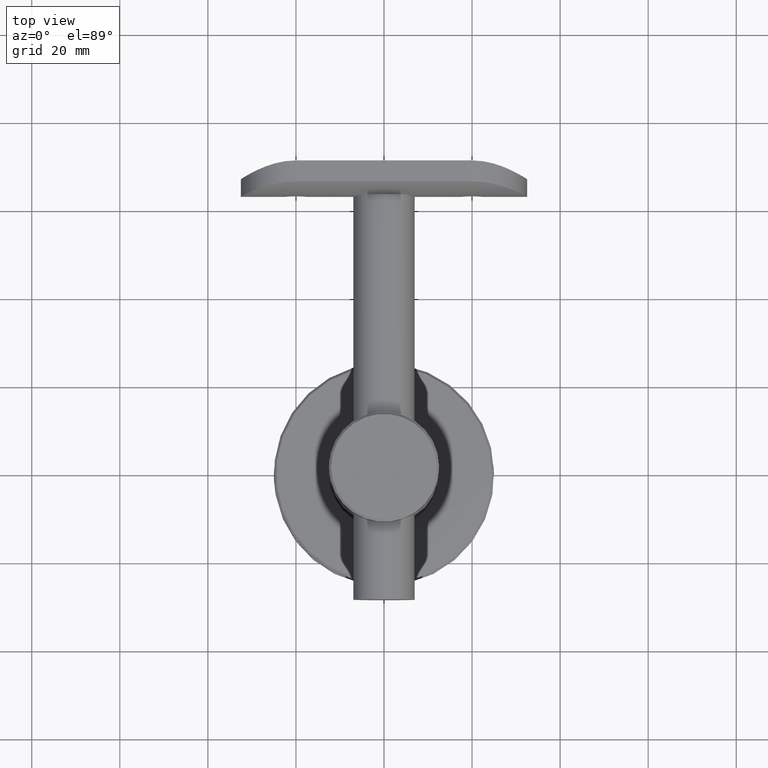
[diagram: clean part render]
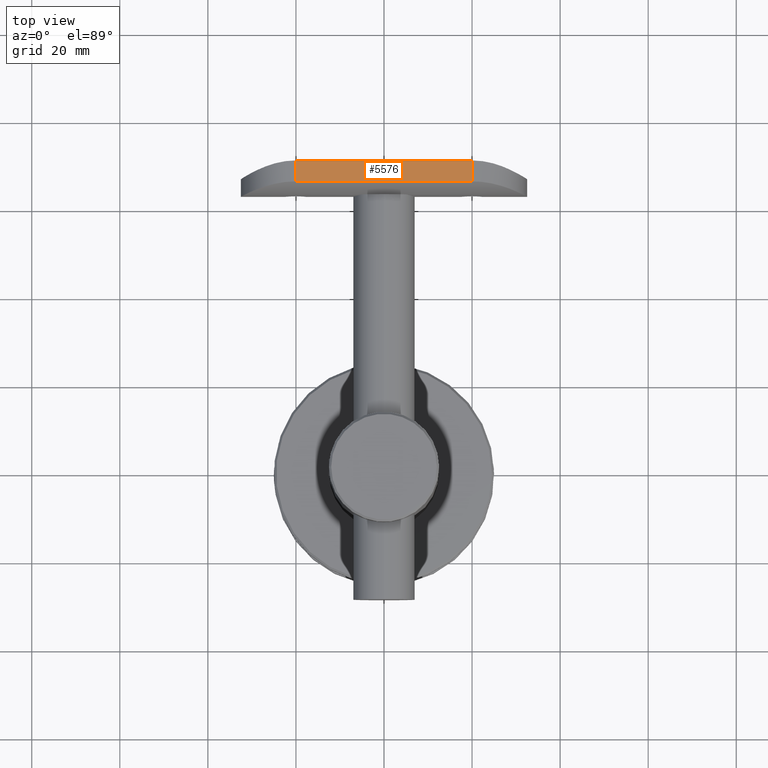
[diagram: same view with one face highlighted and labeled with its STEP entity id]
A machine part, top view. The second image highlights one B-rep face of the part: STEP entity #5576.
In plain terms, the highlighted planar face has unit normal (0, 0, -1).
Its self-contained STEP definition (entity closure, byte-faithful):
#350 = CARTESIAN_POINT ( 'NONE',  ( 12.50000000000000000, 3.318729470161015300, -20.00000000000000400 ) ) ;
#554 = VECTOR ( 'NONE', #9028, 1000.000000000000000 ) ;
#1882 = VERTEX_POINT ( 'NONE', #9082 ) ;
#2134 = LINE ( 'NONE', #8981, #16533 ) ;
#2364 = FACE_OUTER_BOUND ( 'NONE', #5280, .T. ) ;
#2464 = EDGE_CURVE ( 'NONE', #1882, #19660, #2134, .T. ) ;
#2811 = LINE ( 'NONE', #10774, #554 ) ;
#2952 = ORIENTED_EDGE ( 'NONE', *, *, #2464, .T. ) ;
#2998 = CARTESIAN_POINT ( 'NONE',  ( 12.50000000000000000, 3.318729470161015300, 32.50000000000000000 ) ) ;
#3102 = EDGE_CURVE ( 'NONE', #19660, #18827, #10599, .T. ) ;
#3876 = VERTEX_POINT ( 'NONE', #6267 ) ;
#4272 = AXIS2_PLACEMENT_3D ( 'NONE', #18971, #20403, #15920 ) ;
#4550 = CARTESIAN_POINT ( 'NONE',  ( 12.50000000000000000, 3.318729470161015300, -20.00000000000000400 ) ) ;
#5280 = EDGE_LOOP ( 'NONE', ( #17787, #14044, #7608, #2952 ) ) ;
#5576 = ADVANCED_FACE ( 'NONE', ( #2364 ), #9594, .F. ) ;
#6267 = CARTESIAN_POINT ( 'NONE',  ( 12.50000000000000200, 8.077208171562679300, -20.00000000000000400 ) ) ;
#7608 = ORIENTED_EDGE ( 'NONE', *, *, #12721, .F. ) ;
#7736 = LINE ( 'NONE', #350, #20354 ) ;
#7850 = DIRECTION ( 'NONE',  ( -0.0000000000000000000, -0.0000000000000000000, -1.000000000000000000 ) ) ;
#8981 = CARTESIAN_POINT ( 'NONE',  ( 12.50000000000000000, 3.318729470161012600, 20.00000000000000000 ) ) ;
#9028 = DIRECTION ( 'NONE',  ( -0.0000000000000000000, -0.0000000000000000000, -1.000000000000000000 ) ) ;
#9082 = CARTESIAN_POINT ( 'NONE',  ( 12.50000000000000200, 8.077208171562679300, 20.00000000000000000 ) ) ;
#9594 = PLANE ( 'NONE',  #4272 ) ;
#9920 = DIRECTION ( 'NONE',  ( 3.645542167638208600E-016, 1.000000000000000000, -0.0000000000000000000 ) ) ;
#10599 = LINE ( 'NONE', #2998, #16280 ) ;
#10774 = CARTESIAN_POINT ( 'NONE',  ( 12.50000000000000200, 8.077208171562679300, 32.50000000000000000 ) ) ;
#12721 = EDGE_CURVE ( 'NONE', #1882, #3876, #2811, .T. ) ;
#14044 = ORIENTED_EDGE ( 'NONE', *, *, #17407, .T. ) ;
#15204 = CARTESIAN_POINT ( 'NONE',  ( 12.50000000000000000, 3.318729470161015300, 20.00000000000000000 ) ) ;
#15920 = DIRECTION ( 'NONE',  ( -3.645542167638208600E-016, -1.000000000000000000, 0.0000000000000000000 ) ) ;
#16280 = VECTOR ( 'NONE', #7850, 1000.000000000000000 ) ;
#16533 = VECTOR ( 'NONE', #20065, 1000.000000000000000 ) ;
#17407 = EDGE_CURVE ( 'NONE', #18827, #3876, #7736, .T. ) ;
#17787 = ORIENTED_EDGE ( 'NONE', *, *, #3102, .T. ) ;
#18827 = VERTEX_POINT ( 'NONE', #4550 ) ;
#18971 = CARTESIAN_POINT ( 'NONE',  ( 12.50000000000000000, 3.318729470161015300, 32.50000000000000000 ) ) ;
#19660 = VERTEX_POINT ( 'NONE', #15204 ) ;
#20065 = DIRECTION ( 'NONE',  ( -3.645542167638208600E-016, -1.000000000000000000, -0.0000000000000000000 ) ) ;
#20354 = VECTOR ( 'NONE', #9920, 1000.000000000000000 ) ;
#20403 = DIRECTION ( 'NONE',  ( -1.000000000000000000, 3.645542167638208600E-016, 0.0000000000000000000 ) ) ;